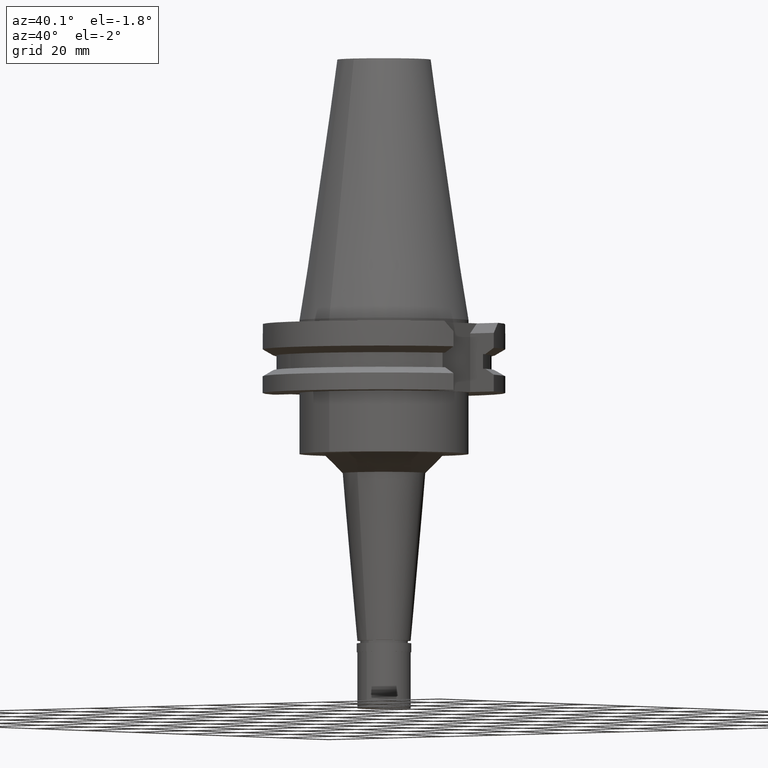
[diagram: clean part render]
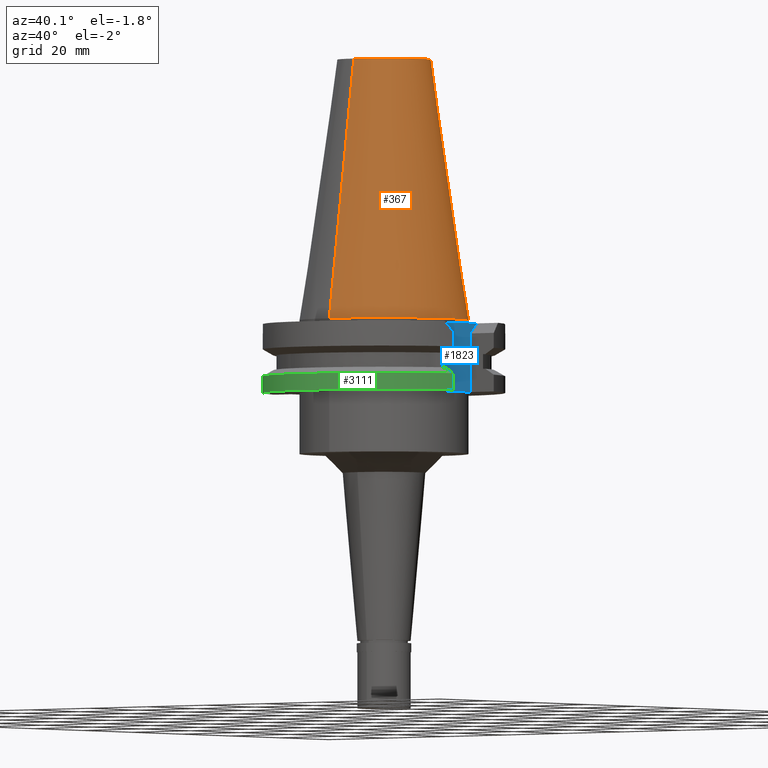
[diagram: same view with three faces highlighted in distinct colors, each labeled with its STEP entity id]
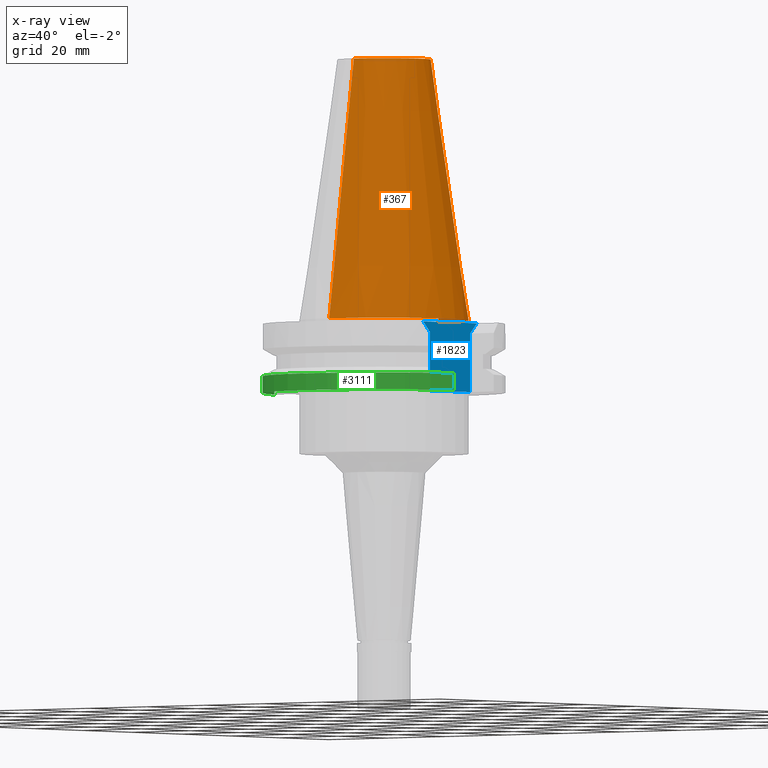
[diagram: x-ray of the same camera — body ghosted, the three highlighted faces saturated]
A machine part, auxiliary view with three faces highlighted in distinct colors.
The next image is the same camera in x-ray (body ghosted, the three faces saturated) — at least one of them is partly hidden behind the body in this view.
Their STEP definitions:

[orange] entity #367 — the highlighted conical surface has half-angle 8.297 deg.
#20 = DIRECTION ( 'NONE',  ( 0.0000000000000000000, 0.0000000000000000000, -1.000000000000000000 ) ) ;
#24 = CIRCLE ( 'NONE', #684, 22.22500000000000142 ) ;
#119 = CIRCLE ( 'NONE', #229, 12.27186888070000137 ) ;
#169 = CARTESIAN_POINT ( 'NONE',  ( 0.0000000000000000000, 1.642557519355999895E-14, 34.12500000000000000 ) ) ;
#229 = AXIS2_PLACEMENT_3D ( 'NONE', #1493, #20, #1253 ) ;
#367 = ADVANCED_FACE ( 'NONE', ( #413 ), #709, .T. ) ;
#407 = CARTESIAN_POINT ( 'NONE',  ( 0.0000000000000000000, -22.22500000000000142, -1.847411112975999717E-13 ) ) ;
#413 = FACE_OUTER_BOUND ( 'NONE', #911, .T. ) ;
#470 = CARTESIAN_POINT ( 'NONE',  ( 0.0000000000000000000, 1.642557519355999895E-14, -3.126388037344000570E-13 ) ) ;
#622 = DIRECTION ( 'NONE',  ( 0.0000000000000000000, -1.000000000000000000, 0.0000000000000000000 ) ) ;
#684 = AXIS2_PLACEMENT_3D ( 'NONE', #470, #3131, #1905 ) ;
#709 = CONICAL_SURFACE ( 'NONE', #2763, 17.24843444035000317, 0.1448125860318199565 ) ;
#784 = VERTEX_POINT ( 'NONE', #407 ) ;
#911 = EDGE_LOOP ( 'NONE', ( #2743, #1765, #1953, #3172 ) ) ;
#977 = EDGE_CURVE ( 'NONE', #2578, #1558, #2663, .T. ) ;
#1116 = EDGE_CURVE ( 'NONE', #2578, #2744, #119, .T. ) ;
#1137 = DIRECTION ( 'NONE',  ( 0.0000000000000000000, -0.1443069799456937474, -0.9895329683941577192 ) ) ;
#1143 = DIRECTION ( 'NONE',  ( 0.0000000000000000000, 0.0000000000000000000, -1.000000000000000000 ) ) ;
#1253 = DIRECTION ( 'NONE',  ( 0.0000000000000000000, 1.000000000000000000, 0.0000000000000000000 ) ) ;
#1351 = VECTOR ( 'NONE', #1908, 1000.000000000000114 ) ;
#1493 = CARTESIAN_POINT ( 'NONE',  ( 0.0000000000000000000, 1.642557519355999895E-14, 68.25000000000000000 ) ) ;
#1558 = VERTEX_POINT ( 'NONE', #2199 ) ;
#1628 = CARTESIAN_POINT ( 'NONE',  ( 0.0000000000000000000, -12.27186888070000137, 68.25000000000000000 ) ) ;
#1725 = CARTESIAN_POINT ( 'NONE',  ( 0.0000000000000000000, 12.27186888070000137, 68.25000000000000000 ) ) ;
#1765 = ORIENTED_EDGE ( 'NONE', *, *, #1800, .T. ) ;
#1794 = CARTESIAN_POINT ( 'NONE',  ( 0.0000000000000000000, -12.27186888070000137, 68.25000000000000000 ) ) ;
#1798 = LINE ( 'NONE', #1628, #2067 ) ;
#1800 = EDGE_CURVE ( 'NONE', #2744, #784, #1798, .T. ) ;
#1905 = DIRECTION ( 'NONE',  ( 0.0000000000000000000, 1.000000000000000000, 0.0000000000000000000 ) ) ;
#1908 = DIRECTION ( 'NONE',  ( 0.0000000000000000000, 0.1443069799456937474, -0.9895329683941577192 ) ) ;
#1909 = EDGE_CURVE ( 'NONE', #1558, #784, #24, .T. ) ;
#1953 = ORIENTED_EDGE ( 'NONE', *, *, #1909, .F. ) ;
#2067 = VECTOR ( 'NONE', #1137, 1000.000000000000114 ) ;
#2199 = CARTESIAN_POINT ( 'NONE',  ( 0.0000000000000000000, 22.22500000000000142, -1.847411112975999717E-13 ) ) ;
#2461 = CARTESIAN_POINT ( 'NONE',  ( 0.0000000000000000000, 12.27186888070000137, 68.25000000000000000 ) ) ;
#2578 = VERTEX_POINT ( 'NONE', #2461 ) ;
#2663 = LINE ( 'NONE', #1725, #1351 ) ;
#2743 = ORIENTED_EDGE ( 'NONE', *, *, #1116, .T. ) ;
#2744 = VERTEX_POINT ( 'NONE', #1794 ) ;
#2763 = AXIS2_PLACEMENT_3D ( 'NONE', #169, #1143, #622 ) ;
#3131 = DIRECTION ( 'NONE',  ( 0.0000000000000000000, 0.0000000000000000000, -1.000000000000000000 ) ) ;
#3172 = ORIENTED_EDGE ( 'NONE', *, *, #977, .F. ) ;

[blue] entity #1823 — the highlighted planar face has unit normal (1, 0, 0).
#49 = ORIENTED_EDGE ( 'NONE', *, *, #2738, .F. ) ;
#263 = DIRECTION ( 'NONE',  ( 0.0000000000000000000, 0.0000000000000000000, -1.000000000000000000 ) ) ;
#272 = VECTOR ( 'NONE', #3194, 1000.000000000000000 ) ;
#509 = LINE ( 'NONE', #2958, #1614 ) ;
#565 = VERTEX_POINT ( 'NONE', #2178 ) ;
#742 = VERTEX_POINT ( 'NONE', #1519 ) ;
#822 = CARTESIAN_POINT ( 'NONE',  ( 22.57000000000000028, 8.189999999999999503, -19.05000000000000071 ) ) ;
#879 = DIRECTION ( 'NONE',  ( 0.0000000000000000000, -0.7071067811865474617, 0.7071067811865474617 ) ) ;
#949 = CARTESIAN_POINT ( 'NONE',  ( 22.57000000000000028, 8.189999999999999503, -19.05000000000000071 ) ) ;
#997 = CARTESIAN_POINT ( 'NONE',  ( 22.57000000000000028, 8.189999999999999503, -3.700000000000000178 ) ) ;
#1010 = LINE ( 'NONE', #2462, #2266 ) ;
#1016 = EDGE_CURVE ( 'NONE', #2726, #1097, #509, .T. ) ;
#1038 = DIRECTION ( 'NONE',  ( 0.0000000000000000000, 0.0000000000000000000, 1.000000000000000000 ) ) ;
#1097 = VERTEX_POINT ( 'NONE', #2919 ) ;
#1168 = EDGE_CURVE ( 'NONE', #2726, #742, #2967, .T. ) ;
#1219 = ORIENTED_EDGE ( 'NONE', *, *, #2202, .F. ) ;
#1308 = VERTEX_POINT ( 'NONE', #949 ) ;
#1519 = CARTESIAN_POINT ( 'NONE',  ( 22.57000000000000028, -10.89000000000000057, -1.000000000000000000 ) ) ;
#1578 = FACE_OUTER_BOUND ( 'NONE', #2923, .T. ) ;
#1614 = VECTOR ( 'NONE', #2685, 1000.000000000000114 ) ;
#1615 = CARTESIAN_POINT ( 'NONE',  ( 22.57000000000000028, 0.0000000000000000000, 0.0000000000000000000 ) ) ;
#1702 = CARTESIAN_POINT ( 'NONE',  ( 22.57000000000000028, -8.189999999999999503, -3.700000000000000178 ) ) ;
#1764 = LINE ( 'NONE', #997, #2727 ) ;
#1823 = ADVANCED_FACE ( 'NONE', ( #1578 ), #2846, .T. ) ;
#1971 = CARTESIAN_POINT ( 'NONE',  ( 22.57000000000000028, 10.89000000000000057, -1.000000000000000000 ) ) ;
#2074 = EDGE_CURVE ( 'NONE', #565, #3157, #1010, .T. ) ;
#2081 = ORIENTED_EDGE ( 'NONE', *, *, #1168, .T. ) ;
#2178 = CARTESIAN_POINT ( 'NONE',  ( 22.57000000000000028, -8.189999999999999503, -19.05000000000000071 ) ) ;
#2202 = EDGE_CURVE ( 'NONE', #1097, #1308, #1764, .T. ) ;
#2266 = VECTOR ( 'NONE', #1038, 1000.000000000000000 ) ;
#2290 = LINE ( 'NONE', #3094, #3151 ) ;
#2388 = EDGE_CURVE ( 'NONE', #3157, #742, #2290, .T. ) ;
#2462 = CARTESIAN_POINT ( 'NONE',  ( 22.57000000000000028, -8.189999999999999503, -19.05000000000000071 ) ) ;
#2532 = CARTESIAN_POINT ( 'NONE',  ( 22.57000000000000028, 10.89000000000000057, -1.000000000000000000 ) ) ;
#2586 = LINE ( 'NONE', #822, #3154 ) ;
#2597 = AXIS2_PLACEMENT_3D ( 'NONE', #1615, #2612, #3117 ) ;
#2612 = DIRECTION ( 'NONE',  ( 1.000000000000000000, 0.0000000000000000000, 0.0000000000000000000 ) ) ;
#2635 = ORIENTED_EDGE ( 'NONE', *, *, #1016, .F. ) ;
#2685 = DIRECTION ( 'NONE',  ( 0.0000000000000000000, -0.7071067811865474617, -0.7071067811865474617 ) ) ;
#2695 = ORIENTED_EDGE ( 'NONE', *, *, #2388, .F. ) ;
#2726 = VERTEX_POINT ( 'NONE', #2532 ) ;
#2727 = VECTOR ( 'NONE', #263, 1000.000000000000000 ) ;
#2733 = ORIENTED_EDGE ( 'NONE', *, *, #2074, .F. ) ;
#2738 = EDGE_CURVE ( 'NONE', #1308, #565, #2586, .T. ) ;
#2846 = PLANE ( 'NONE',  #2597 ) ;
#2919 = CARTESIAN_POINT ( 'NONE',  ( 22.57000000000000028, 8.189999999999999503, -3.700000000000000178 ) ) ;
#2923 = EDGE_LOOP ( 'NONE', ( #1219, #2635, #2081, #2695, #2733, #49 ) ) ;
#2958 = CARTESIAN_POINT ( 'NONE',  ( 22.57000000000000028, 10.89000000000000057, -1.000000000000000000 ) ) ;
#2967 = LINE ( 'NONE', #1971, #272 ) ;
#3071 = DIRECTION ( 'NONE',  ( 0.0000000000000000000, -1.000000000000000000, 0.0000000000000000000 ) ) ;
#3094 = CARTESIAN_POINT ( 'NONE',  ( 22.57000000000000028, -8.189999999999999503, -3.700000000000000178 ) ) ;
#3117 = DIRECTION ( 'NONE',  ( 0.0000000000000000000, 1.000000000000000000, 0.0000000000000000000 ) ) ;
#3151 = VECTOR ( 'NONE', #879, 1000.000000000000114 ) ;
#3154 = VECTOR ( 'NONE', #3071, 1000.000000000000000 ) ;
#3157 = VERTEX_POINT ( 'NONE', #1702 ) ;
#3194 = DIRECTION ( 'NONE',  ( 0.0000000000000000000, -1.000000000000000000, 0.0000000000000000000 ) ) ;

[green] entity #3111 — the highlighted cylindrical surface (partial cylindrical patch) has radius 31.75 mm, axis along (0, 0, -1).
#35 = CARTESIAN_POINT ( 'NONE',  ( -30.67550162588999640, -8.189999999999999503, -19.05000000000000071 ) ) ;
#90 = VERTEX_POINT ( 'NONE', #370 ) ;
#193 = VECTOR ( 'NONE', #3003, 1000.000000000000000 ) ;
#196 = EDGE_CURVE ( 'NONE', #898, #613, #2824, .T. ) ;
#281 = DIRECTION ( 'NONE',  ( 3.682847641827927238E-08, 1.379409667692972264E-07, -0.9999999999999898970 ) ) ;
#334 = EDGE_CURVE ( 'NONE', #2056, #90, #2872, .T. ) ;
#370 = CARTESIAN_POINT ( 'NONE',  ( 30.67550162588999640, -8.189999999999999503, -19.05000000000000071 ) ) ;
#586 = EDGE_CURVE ( 'NONE', #898, #90, #1041, .T. ) ;
#613 = VERTEX_POINT ( 'NONE', #1300 ) ;
#664 = AXIS2_PLACEMENT_3D ( 'NONE', #1520, #1258, #2722 ) ;
#787 = CYLINDRICAL_SURFACE ( 'NONE', #664, 31.75000000000000000 ) ;
#841 = ORIENTED_EDGE ( 'NONE', *, *, #1648, .F. ) ;
#898 = VERTEX_POINT ( 'NONE', #1337 ) ;
#1041 = LINE ( 'NONE', #3018, #2134 ) ;
#1089 = CARTESIAN_POINT ( 'NONE',  ( 0.0000000000000000000, 1.055026073064999954E-14, -14.65366676908000088 ) ) ;
#1125 = DIRECTION ( 'NONE',  ( 0.0000000000000000000, 0.0000000000000000000, 1.000000000000000000 ) ) ;
#1258 = DIRECTION ( 'NONE',  ( 0.0000000000000000000, 0.0000000000000000000, -1.000000000000000000 ) ) ;
#1300 = CARTESIAN_POINT ( 'NONE',  ( -30.67550165945999652, -8.189999874271000735, -14.65366564556000029 ) ) ;
#1337 = CARTESIAN_POINT ( 'NONE',  ( 30.67550146397999811, -8.190000606433999408, -14.65367218827999984 ) ) ;
#1434 = AXIS2_PLACEMENT_3D ( 'NONE', #1089, #2752, #3009 ) ;
#1480 = AXIS2_PLACEMENT_3D ( 'NONE', #2143, #1125, #2622 ) ;
#1520 = CARTESIAN_POINT ( 'NONE',  ( 0.0000000000000000000, 2.162022075384999775E-14, 76.54250000000000398 ) ) ;
#1561 = ORIENTED_EDGE ( 'NONE', *, *, #196, .T. ) ;
#1648 = EDGE_CURVE ( 'NONE', #2056, #613, #1992, .T. ) ;
#1992 = LINE ( 'NONE', #2976, #193 ) ;
#2056 = VERTEX_POINT ( 'NONE', #35 ) ;
#2075 = ORIENTED_EDGE ( 'NONE', *, *, #334, .T. ) ;
#2134 = VECTOR ( 'NONE', #281, 999.9999999999998863 ) ;
#2143 = CARTESIAN_POINT ( 'NONE',  ( 0.0000000000000000000, 2.162022075384999775E-14, -19.05000000000000071 ) ) ;
#2383 = EDGE_LOOP ( 'NONE', ( #1561, #841, #2075, #3136 ) ) ;
#2497 = FACE_OUTER_BOUND ( 'NONE', #2383, .T. ) ;
#2622 = DIRECTION ( 'NONE',  ( 0.0000000000000000000, -1.000000000000000000, 0.0000000000000000000 ) ) ;
#2722 = DIRECTION ( 'NONE',  ( 0.0000000000000000000, -1.000000000000000000, 0.0000000000000000000 ) ) ;
#2752 = DIRECTION ( 'NONE',  ( 0.0000000000000000000, 0.0000000000000000000, -1.000000000000000000 ) ) ;
#2824 = CIRCLE ( 'NONE', #1434, 31.74999999999998579 ) ;
#2872 = CIRCLE ( 'NONE', #1480, 31.75000000000000000 ) ;
#2976 = CARTESIAN_POINT ( 'NONE',  ( -30.67550162588999640, -8.189999999999999503, -19.05000000000000071 ) ) ;
#3003 = DIRECTION ( 'NONE',  ( -7.635617661252995887E-09, 2.859850544691998856E-08, 0.9999999999999995559 ) ) ;
#3009 = DIRECTION ( 'NONE',  ( 0.9661575315241073270, -0.2579527559055020958, 0.0000000000000000000 ) ) ;
#3018 = CARTESIAN_POINT ( 'NONE',  ( 30.67550146397999811, -8.190000606433999408, -14.65367218827999984 ) ) ;
#3111 = ADVANCED_FACE ( 'NONE', ( #2497 ), #787, .T. ) ;
#3136 = ORIENTED_EDGE ( 'NONE', *, *, #586, .F. ) ;